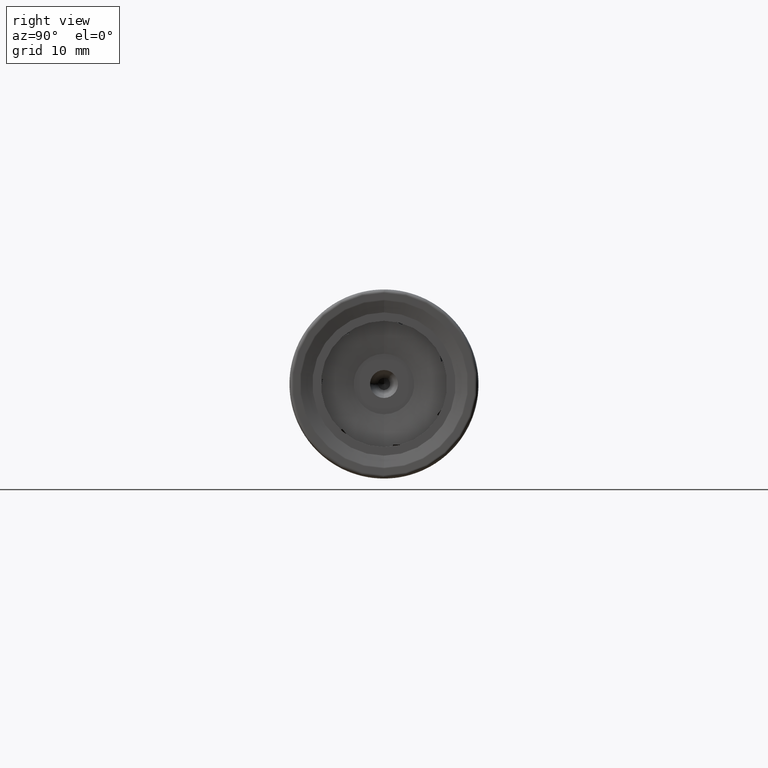
[diagram: clean part render]
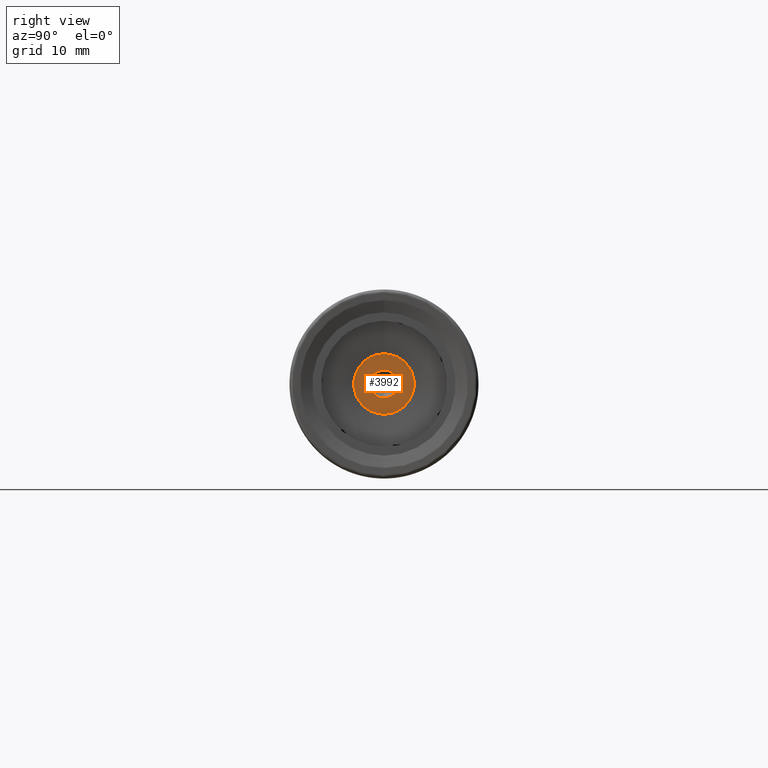
[diagram: same view with one face highlighted and labeled with its STEP entity id]
A machine part, right view. The second image highlights one B-rep face of the part: STEP entity #3992.
In plain terms, the highlighted planar face has unit normal (1, 0, -0).
Its self-contained STEP definition (entity closure, byte-faithful):
#259 = CARTESIAN_POINT ( 'NONE',  ( -1.399999999999999900, 0.0000000000000000000, -4.000000000000000000 ) ) ;
#301 = CARTESIAN_POINT ( 'NONE',  ( -1.399999999999998600, 2.265596578422603100E-016, 1.850000000000000100 ) ) ;
#313 = CARTESIAN_POINT ( 'NONE',  ( -1.399999999999999900, 7.613421786856839400E-016, 4.000000000000000000 ) ) ;
#331 = CARTESIAN_POINT ( 'NONE',  ( -1.399999999999998600, 0.0000000000000000000, -1.850000000000000100 ) ) ;
#702 = DIRECTION ( 'NONE',  ( 1.000000000000000000, 0.0000000000000000000, -0.0000000000000000000 ) ) ;
#711 = CARTESIAN_POINT ( 'NONE',  ( -1.399999999999999200, -1.158722531986733500E-014, 0.0000000000000000000 ) ) ;
#712 = FACE_OUTER_BOUND ( 'NONE', #3091, .T. ) ;
#713 = FACE_BOUND ( 'NONE', #3114, .T. ) ;
#714 = PLANE ( 'NONE',  #3476 ) ;
#715 = DIRECTION ( 'NONE',  ( -0.0000000000000000000, 0.0000000000000000000, -1.000000000000000000 ) ) ;
#778 = AXIS2_PLACEMENT_3D ( 'NONE', #1573, #1574, #1575 ) ;
#1573 = CARTESIAN_POINT ( 'NONE',  ( -1.399999999999998600, 0.0000000000000000000, 0.0000000000000000000 ) ) ;
#1574 = DIRECTION ( 'NONE',  ( -1.000000000000000000, -0.0000000000000000000, -0.0000000000000000000 ) ) ;
#1575 = DIRECTION ( 'NONE',  ( 0.0000000000000000000, 0.0000000000000000000, 1.000000000000000000 ) ) ;
#1922 = CARTESIAN_POINT ( 'NONE',  ( -1.399999999999999900, 0.0000000000000000000, 0.0000000000000000000 ) ) ;
#1923 = DIRECTION ( 'NONE',  ( 1.000000000000000000, -0.0000000000000000000, -0.0000000000000000000 ) ) ;
#1924 = DIRECTION ( 'NONE',  ( 0.0000000000000000000, 0.0000000000000000000, -1.000000000000000000 ) ) ;
#2230 = CARTESIAN_POINT ( 'NONE',  ( -1.399999999999998600, 0.0000000000000000000, 0.0000000000000000000 ) ) ;
#2231 = DIRECTION ( 'NONE',  ( -1.000000000000000000, -0.0000000000000000000, -0.0000000000000000000 ) ) ;
#2232 = DIRECTION ( 'NONE',  ( 0.0000000000000000000, 0.0000000000000000000, 1.000000000000000000 ) ) ;
#2248 = CARTESIAN_POINT ( 'NONE',  ( -1.399999999999999900, 0.0000000000000000000, 0.0000000000000000000 ) ) ;
#2249 = DIRECTION ( 'NONE',  ( 1.000000000000000000, -0.0000000000000000000, -0.0000000000000000000 ) ) ;
#2250 = DIRECTION ( 'NONE',  ( 0.0000000000000000000, 0.0000000000000000000, -1.000000000000000000 ) ) ;
#3091 = EDGE_LOOP ( 'NONE', ( #6138, #6144 ) ) ;
#3114 = EDGE_LOOP ( 'NONE', ( #6131, #6129 ) ) ;
#3476 = AXIS2_PLACEMENT_3D ( 'NONE', #711, #702, #715 ) ;
#3737 = VERTEX_POINT ( 'NONE', #259 ) ;
#3780 = VERTEX_POINT ( 'NONE', #301 ) ;
#3792 = VERTEX_POINT ( 'NONE', #313 ) ;
#3810 = VERTEX_POINT ( 'NONE', #331 ) ;
#3992 = ADVANCED_FACE ( 'NONE', ( #712, #713 ), #714, .T. ) ;
#4164 = EDGE_CURVE ( 'NONE', #3810, #3780, #4241, .T. ) ;
#4235 = EDGE_CURVE ( 'NONE', #3792, #3737, #4531, .T. ) ;
#4241 = CIRCLE ( 'NONE', #778, 1.850000000000000100 ) ;
#4531 = CIRCLE ( 'NONE', #4534, 4.000000000000000000 ) ;
#4534 = AXIS2_PLACEMENT_3D ( 'NONE', #1922, #1923, #1924 ) ;
#4617 = CIRCLE ( 'NONE', #4619, 1.850000000000000100 ) ;
#4618 = CIRCLE ( 'NONE', #4620, 4.000000000000000000 ) ;
#4619 = AXIS2_PLACEMENT_3D ( 'NONE', #2230, #2231, #2232 ) ;
#4620 = AXIS2_PLACEMENT_3D ( 'NONE', #2248, #2249, #2250 ) ;
#4889 = EDGE_CURVE ( 'NONE', #3780, #3810, #4617, .T. ) ;
#4892 = EDGE_CURVE ( 'NONE', #3737, #3792, #4618, .T. ) ;
#6129 = ORIENTED_EDGE ( 'NONE', *, *, #4889, .T. ) ;
#6131 = ORIENTED_EDGE ( 'NONE', *, *, #4164, .T. ) ;
#6138 = ORIENTED_EDGE ( 'NONE', *, *, #4892, .T. ) ;
#6144 = ORIENTED_EDGE ( 'NONE', *, *, #4235, .T. ) ;